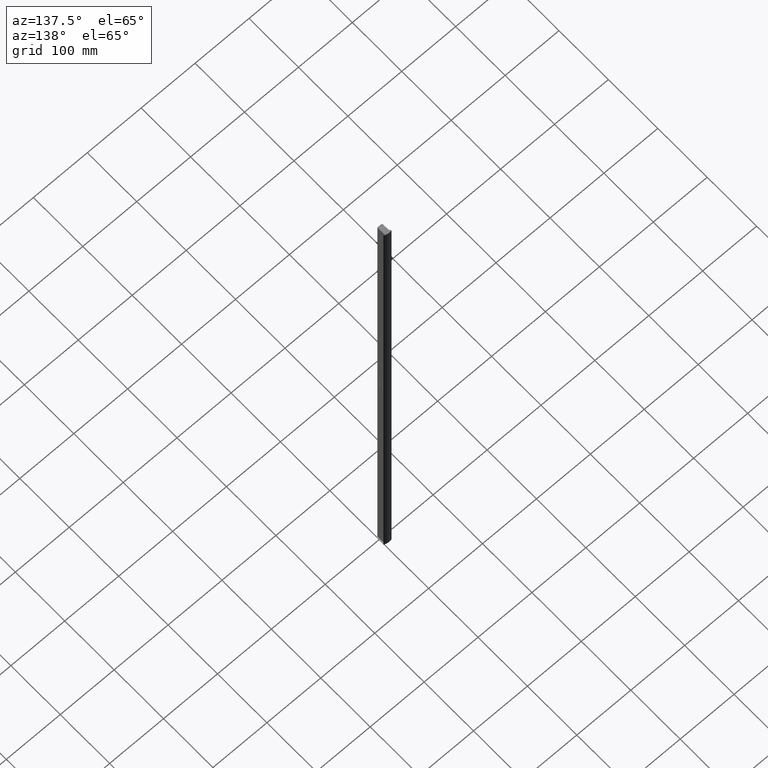
[diagram: clean part render]
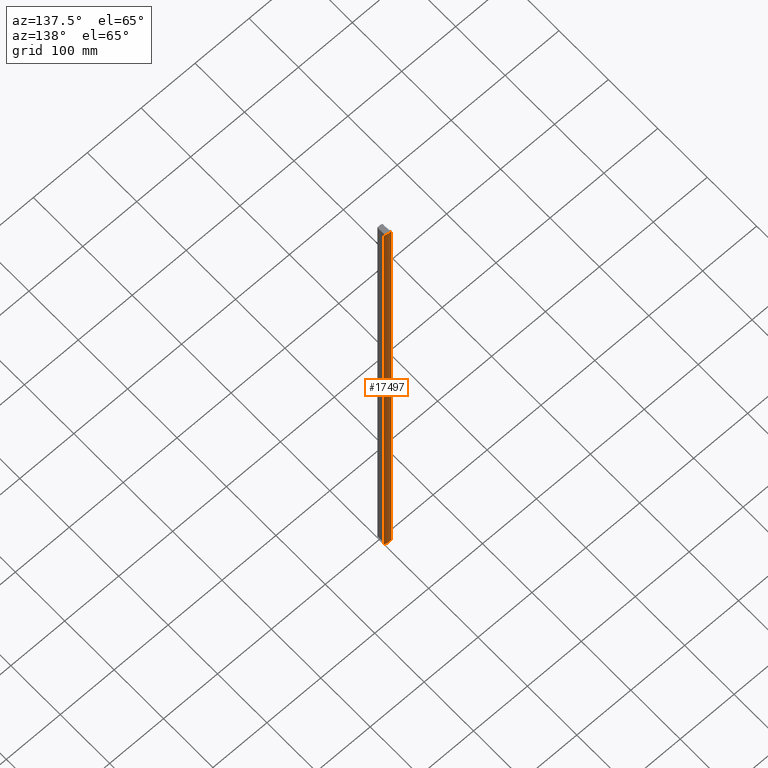
[diagram: same view with one face highlighted and labeled with its STEP entity id]
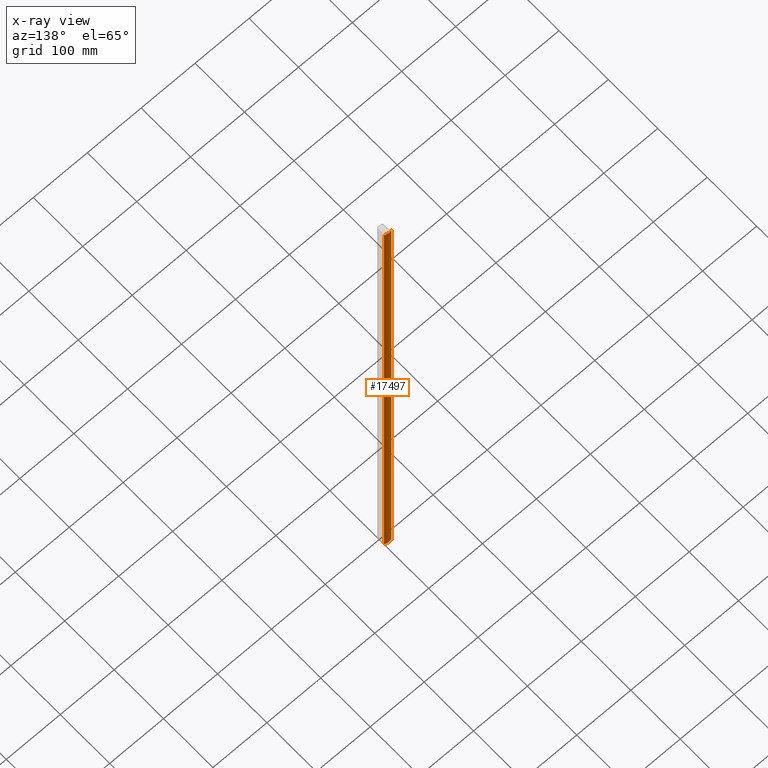
[diagram: x-ray of the same camera — body ghosted, the highlighted face saturated]
A machine part, auxiliary view. The second image highlights one B-rep face of the part: STEP entity #17497.
The next image is the same camera in x-ray: the body ghosted, the highlighted face saturated — about 0% of this face is hidden behind the body in this view.
In plain terms, the highlighted cylindrical surface (edge-blend (fillet) strip) has radius 20.5 mm, axis along (-0, -0, -1).
Its self-contained STEP definition (entity closure, byte-faithful):
#545 = DIRECTION ( 'NONE',  ( 1.000000000000000000, 0.000000000000000000, 0.000000000000000000 ) ) ;
#1060 = AXIS2_PLACEMENT_3D ( 'NONE', #4316, #17683, #5934 ) ;
#2958 = CARTESIAN_POINT ( 'NONE',  ( -3.503199815520892546, -3.499999999999999556, 500.0000000000000000 ) ) ;
#3366 = ORIENTED_EDGE ( 'NONE', *, *, #14000, .F. ) ;
#4316 = CARTESIAN_POINT ( 'NONE',  ( -3.503199815520892546, -3.499999999999999556, 500.0000000000000000 ) ) ;
#4518 = CIRCLE ( 'NONE', #10795, 20.49999999999999645 ) ;
#4686 = CARTESIAN_POINT ( 'NONE',  ( 5.176598956618405190, 15.07178217821782162, 500.0000000000000000 ) ) ;
#4801 = VERTEX_POINT ( 'NONE', #7192 ) ;
#5844 = FACE_OUTER_BOUND ( 'NONE', #14090, .T. ) ;
#5934 = DIRECTION ( 'NONE',  ( -1.000000000000000000, 0.000000000000000000, 0.000000000000000000 ) ) ;
#5979 = VECTOR ( 'NONE', #6422, 1000.000000000000000 ) ;
#6379 = DIRECTION ( 'NONE',  ( -0.000000000000000000, -0.000000000000000000, -1.000000000000000000 ) ) ;
#6422 = DIRECTION ( 'NONE',  ( -0.000000000000000000, -0.000000000000000000, -1.000000000000000000 ) ) ;
#7192 = CARTESIAN_POINT ( 'NONE',  ( -7.489311382160622088, 16.60872732368463289, 500.0000000000000000 ) ) ;
#7341 = ORIENTED_EDGE ( 'NONE', *, *, #17134, .T. ) ;
#7536 = VERTEX_POINT ( 'NONE', #8590 ) ;
#8590 = CARTESIAN_POINT ( 'NONE',  ( 5.176598956618405190, 15.07178217821782162, 500.0000000000000000 ) ) ;
#9027 = ORIENTED_EDGE ( 'NONE', *, *, #16035, .T. ) ;
#10248 = CYLINDRICAL_SURFACE ( 'NONE', #1060, 20.49999999999999645 ) ;
#10323 = DIRECTION ( 'NONE',  ( 0.000000000000000000, 0.000000000000000000, 1.000000000000000000 ) ) ;
#10795 = AXIS2_PLACEMENT_3D ( 'NONE', #2958, #10323, #14899 ) ;
#10990 = VERTEX_POINT ( 'NONE', #18435 ) ;
#11182 = EDGE_CURVE ( 'NONE', #4801, #17799, #17761, .T. ) ;
#12580 = VECTOR ( 'NONE', #6379, 1000.000000000000000 ) ;
#12639 = CARTESIAN_POINT ( 'NONE',  ( -7.489311382160622088, 16.60872732368463289, -500.0000000000000000 ) ) ;
#12795 = CIRCLE ( 'NONE', #18218, 20.49999999999999645 ) ;
#13762 = DIRECTION ( 'NONE',  ( 0.000000000000000000, 0.000000000000000000, 1.000000000000000000 ) ) ;
#14000 = EDGE_CURVE ( 'NONE', #7536, #4801, #4518, .T. ) ;
#14090 = EDGE_LOOP ( 'NONE', ( #7341, #16180, #3366, #9027 ) ) ;
#14899 = DIRECTION ( 'NONE',  ( 1.000000000000000000, 0.000000000000000000, 0.000000000000000000 ) ) ;
#15110 = LINE ( 'NONE', #4686, #12580 ) ;
#16035 = EDGE_CURVE ( 'NONE', #7536, #10990, #15110, .T. ) ;
#16180 = ORIENTED_EDGE ( 'NONE', *, *, #11182, .F. ) ;
#16730 = CARTESIAN_POINT ( 'NONE',  ( -3.503199815520892546, -3.499999999999999556, -500.0000000000000000 ) ) ;
#17134 = EDGE_CURVE ( 'NONE', #10990, #17799, #12795, .T. ) ;
#17497 = ADVANCED_FACE ( 'NONE', ( #5844 ), #10248, .T. ) ;
#17683 = DIRECTION ( 'NONE',  ( -0.000000000000000000, -0.000000000000000000, -1.000000000000000000 ) ) ;
#17761 = LINE ( 'NONE', #18285, #5979 ) ;
#17799 = VERTEX_POINT ( 'NONE', #12639 ) ;
#18218 = AXIS2_PLACEMENT_3D ( 'NONE', #16730, #13762, #545 ) ;
#18285 = CARTESIAN_POINT ( 'NONE',  ( -7.489311382160622088, 16.60872732368463289, 500.0000000000000000 ) ) ;
#18435 = CARTESIAN_POINT ( 'NONE',  ( 5.176598956618405190, 15.07178217821782162, -500.0000000000000000 ) ) ;